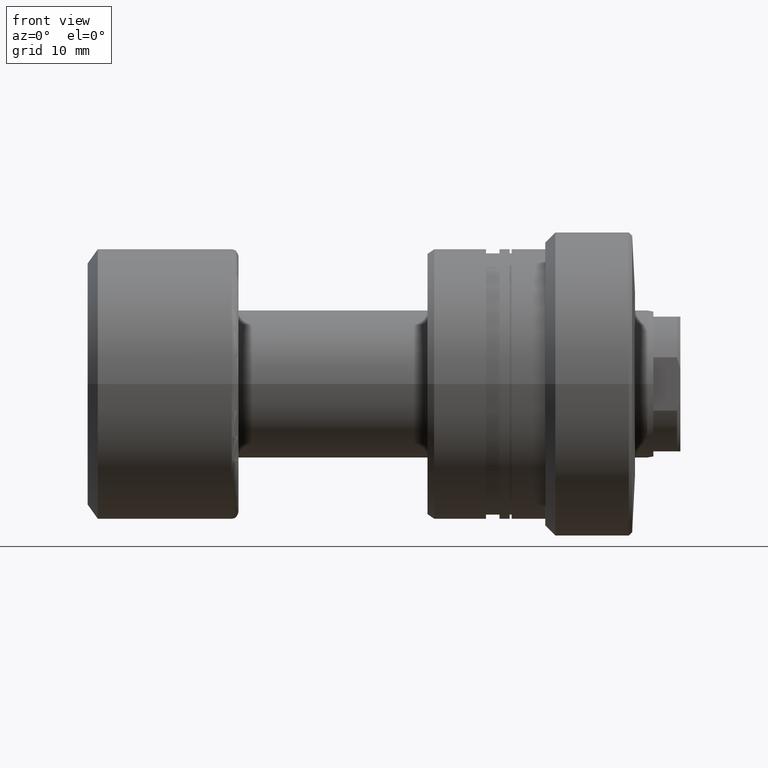
[diagram: clean part render]
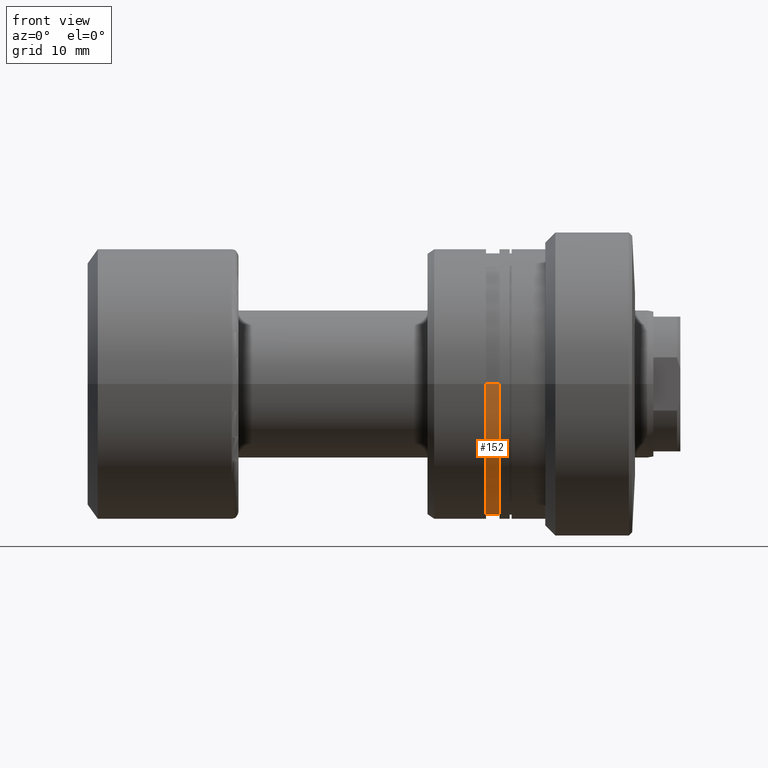
[diagram: same view with one face highlighted and labeled with its STEP entity id]
A machine part, front view. The second image highlights one B-rep face of the part: STEP entity #152.
In plain terms, the highlighted cylindrical surface (partial cylindrical patch) has radius 19.5 mm, axis along (1, 0, 0).
Its self-contained STEP definition (entity closure, byte-faithful):
#32 = CARTESIAN_POINT ( 'NONE',  ( -20.80000000000000426, -19.49999999999999645, 2.388061258337341305E-15 ) ) ;
#41 = VERTEX_POINT ( 'NONE', #1163 ) ;
#81 = DIRECTION ( 'NONE',  ( -3.024646060677505962E-15, 1.000000000000000000, 0.000000000000000000 ) ) ;
#152 = ADVANCED_FACE ( 'NONE', ( #1117 ), #386, .T. ) ;
#239 = CIRCLE ( 'NONE', #2014, 19.50000000000002487 ) ;
#257 = ORIENTED_EDGE ( 'NONE', *, *, #1254, .T. ) ;
#386 = CYLINDRICAL_SURFACE ( 'NONE', #1956, 19.50000000000002132 ) ;
#526 = DIRECTION ( 'NONE',  ( 1.000000000000000000, 3.039592211588219332E-15, -0.000000000000000000 ) ) ;
#792 = CARTESIAN_POINT ( 'NONE',  ( -30.28002276692732408, 0.000000000000000000, 0.000000000000000000 ) ) ;
#1026 = DIRECTION ( 'NONE',  ( 1.000000000000000000, 3.039592211588219332E-15, -0.000000000000000000 ) ) ;
#1115 = VECTOR ( 'NONE', #1632, 1000.000000000000000 ) ;
#1117 = FACE_OUTER_BOUND ( 'NONE', #2369, .T. ) ;
#1125 = VERTEX_POINT ( 'NONE', #32 ) ;
#1163 = CARTESIAN_POINT ( 'NONE',  ( -22.80878161770237966, -19.49999999999999289, 2.388061258337341305E-15 ) ) ;
#1228 = EDGE_CURVE ( 'NONE', #1125, #1878, #239, .T. ) ;
#1245 = CARTESIAN_POINT ( 'NONE',  ( -20.80000000000006111, 2.881540336803110710E-14, 0.000000000000000000 ) ) ;
#1254 = EDGE_CURVE ( 'NONE', #41, #2003, #1961, .T. ) ;
#1277 = DIRECTION ( 'NONE',  ( -3.024646060677506357E-15, 1.000000000000000000, 0.000000000000000000 ) ) ;
#1357 = EDGE_CURVE ( 'NONE', #2003, #1878, #2400, .T. ) ;
#1389 = EDGE_CURVE ( 'NONE', #41, #1125, #1463, .T. ) ;
#1463 = LINE ( 'NONE', #1668, #2313 ) ;
#1613 = CARTESIAN_POINT ( 'NONE',  ( -20.80000000000012150, 19.50000000000005329, 0.000000000000000000 ) ) ;
#1632 = DIRECTION ( 'NONE',  ( 1.000000000000000000, 3.039592211588219332E-15, -0.000000000000000000 ) ) ;
#1668 = CARTESIAN_POINT ( 'NONE',  ( -30.28002276692726369, -19.50000000000002132, 2.388061258337341305E-15 ) ) ;
#1729 = ORIENTED_EDGE ( 'NONE', *, *, #1357, .T. ) ;
#1788 = DIRECTION ( 'NONE',  ( 1.000000000000000000, 3.039592211588219332E-15, -0.000000000000000000 ) ) ;
#1854 = DIRECTION ( 'NONE',  ( 1.000000000000000000, 3.039592211588219332E-15, -0.000000000000000000 ) ) ;
#1878 = VERTEX_POINT ( 'NONE', #1613 ) ;
#1889 = ORIENTED_EDGE ( 'NONE', *, *, #1228, .F. ) ;
#1913 = CARTESIAN_POINT ( 'NONE',  ( -22.80878161770249690, 19.50000000000004263, 0.000000000000000000 ) ) ;
#1956 = AXIS2_PLACEMENT_3D ( 'NONE', #792, #1854, #1277 ) ;
#1961 = CIRCLE ( 'NONE', #2125, 19.50000000000001776 ) ;
#1984 = CARTESIAN_POINT ( 'NONE',  ( -22.80878161770243651, 2.270952640808138014E-14, 0.000000000000000000 ) ) ;
#1994 = ORIENTED_EDGE ( 'NONE', *, *, #1389, .F. ) ;
#2003 = VERTEX_POINT ( 'NONE', #1913 ) ;
#2014 = AXIS2_PLACEMENT_3D ( 'NONE', #1245, #1026, #81 ) ;
#2125 = AXIS2_PLACEMENT_3D ( 'NONE', #1984, #1788, #2148 ) ;
#2148 = DIRECTION ( 'NONE',  ( -3.024646060677507146E-15, 1.000000000000000000, 0.000000000000000000 ) ) ;
#2313 = VECTOR ( 'NONE', #526, 1000.000000000000000 ) ;
#2369 = EDGE_LOOP ( 'NONE', ( #1994, #257, #1729, #1889 ) ) ;
#2400 = LINE ( 'NONE', #2439, #1115 ) ;
#2439 = CARTESIAN_POINT ( 'NONE',  ( -30.28002276692738448, 19.50000000000002132, 0.000000000000000000 ) ) ;